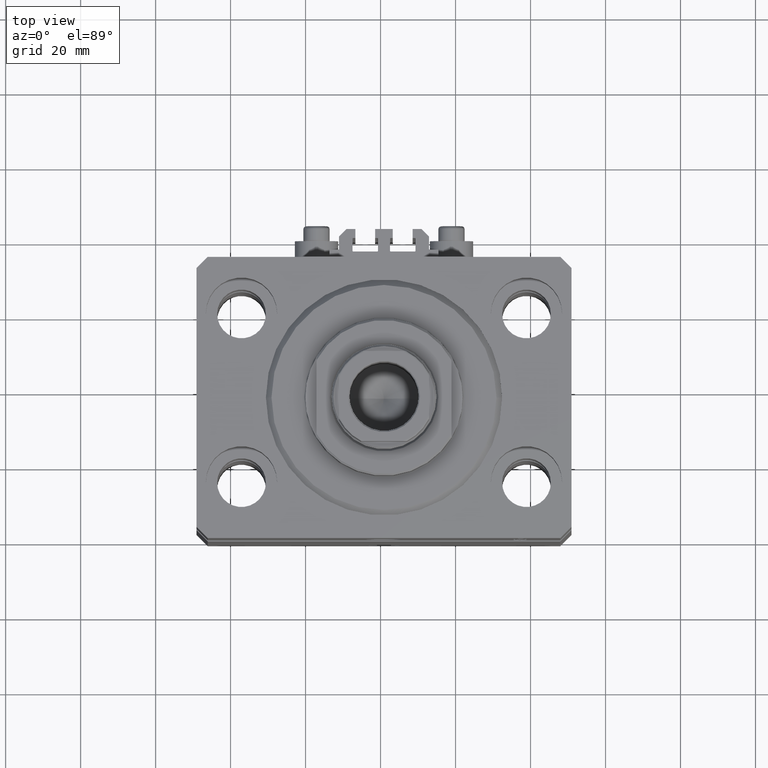
[diagram: clean part render]
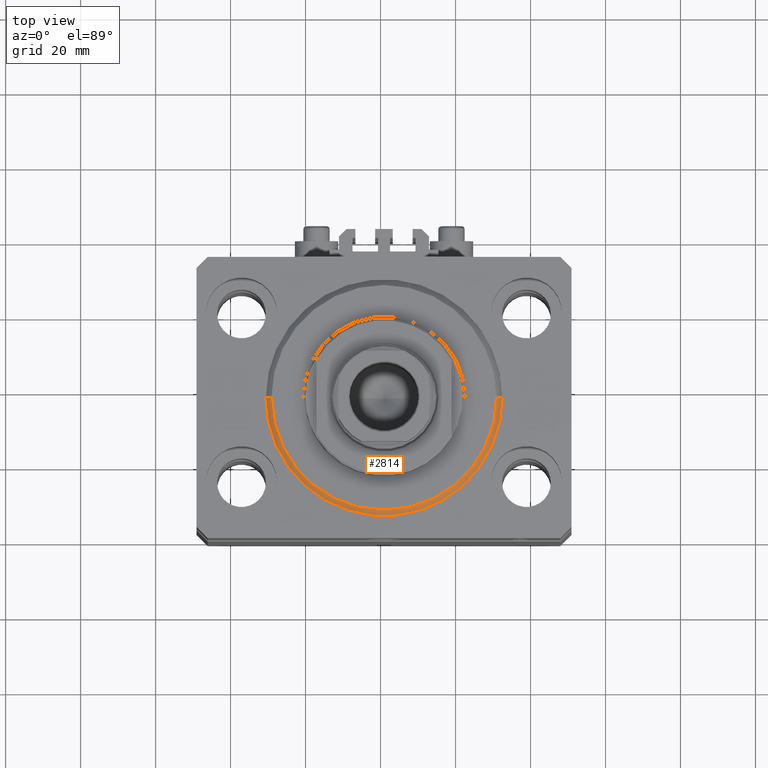
[diagram: same view with one face highlighted and labeled with its STEP entity id]
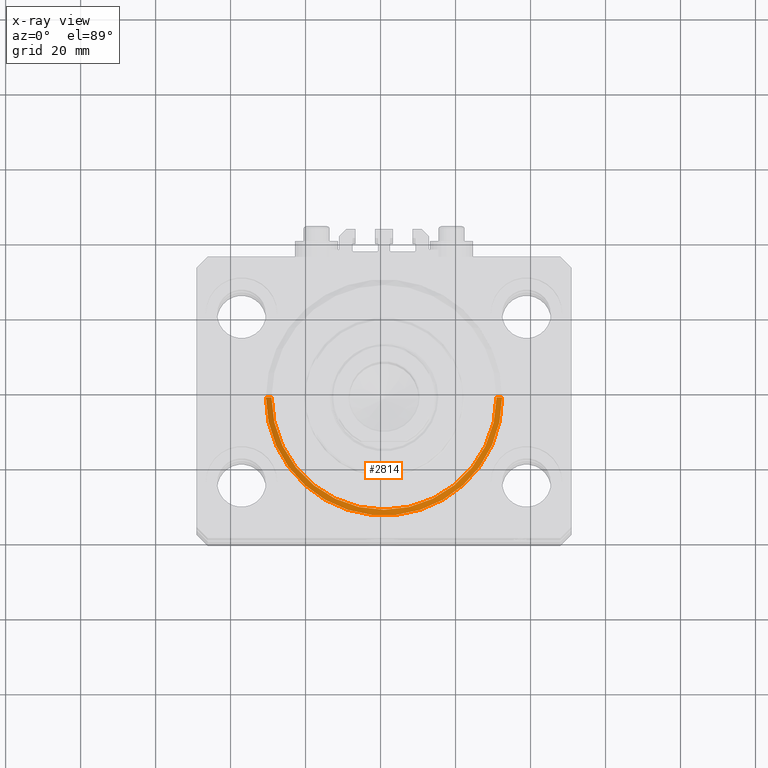
[diagram: x-ray of the same camera — body ghosted, the highlighted face saturated]
A machine part, top view. The second image highlights one B-rep face of the part: STEP entity #2814.
The next image is the same camera in x-ray: the body ghosted, the highlighted face saturated — about 0% of this face is hidden behind the body in this view.
In plain terms, the highlighted conical surface has half-angle 45 deg.
Its self-contained STEP definition (entity closure, byte-faithful):
#1335 = VECTOR ( 'NONE', #45282, 1000.000000000000114 ) ;
#2551 = DIRECTION ( 'NONE',  ( -0.000000000000000000, -0.000000000000000000, 1.000000000000000000 ) ) ;
#2814 = ADVANCED_FACE ( 'NONE', ( #23373 ), #9220, .T. ) ;
#3136 = EDGE_CURVE ( 'NONE', #14443, #21429, #15602, .T. ) ;
#3937 = AXIS2_PLACEMENT_3D ( 'NONE', #46903, #39678, #36527 ) ;
#4872 = CARTESIAN_POINT ( 'NONE',  ( -30.00000000000002132, 3.765788907378112117E-15, 0.000000000000000000 ) ) ;
#6915 = VECTOR ( 'NONE', #26685, 1000.000000000000114 ) ;
#8194 = DIRECTION ( 'NONE',  ( 1.000000000000000000, 0.000000000000000000, 0.000000000000000000 ) ) ;
#9220 = CONICAL_SURFACE ( 'NONE', #20023, 31.50000000000000000, 0.7853981633974482790 ) ;
#9424 = EDGE_CURVE ( 'NONE', #22944, #14443, #32410, .T. ) ;
#11995 = CARTESIAN_POINT ( 'NONE',  ( -31.50000000000000000, 3.857637417314162689E-15, 1.499999999999980460 ) ) ;
#14105 = CARTESIAN_POINT ( 'NONE',  ( 0.000000000000000000, 0.000000000000000000, 1.499999999999980460 ) ) ;
#14443 = VERTEX_POINT ( 'NONE', #4872 ) ;
#15602 = LINE ( 'NONE', #11995, #6915 ) ;
#19132 = CARTESIAN_POINT ( 'NONE',  ( 31.50000000000000000, 3.857637417314162689E-15, 1.499999999999980460 ) ) ;
#20023 = AXIS2_PLACEMENT_3D ( 'NONE', #45105, #44857, #8194 ) ;
#21429 = VERTEX_POINT ( 'NONE', #41967 ) ;
#21493 = CARTESIAN_POINT ( 'NONE',  ( 30.00000000000002132, 0.000000000000000000, 0.000000000000000000 ) ) ;
#22112 = EDGE_LOOP ( 'NONE', ( #31326, #47698, #31389, #46504 ) ) ;
#22612 = CIRCLE ( 'NONE', #41108, 31.50000000000000000 ) ;
#22944 = VERTEX_POINT ( 'NONE', #21493 ) ;
#23373 = FACE_OUTER_BOUND ( 'NONE', #22112, .T. ) ;
#24279 = EDGE_CURVE ( 'NONE', #22944, #35634, #41414, .T. ) ;
#26685 = DIRECTION ( 'NONE',  ( -0.7071067811865474617, 8.659560562354932858E-17, 0.7071067811865474617 ) ) ;
#27419 = CARTESIAN_POINT ( 'NONE',  ( 31.50000000000000000, 0.000000000000000000, 1.499999999999980460 ) ) ;
#31326 = ORIENTED_EDGE ( 'NONE', *, *, #3136, .F. ) ;
#31389 = ORIENTED_EDGE ( 'NONE', *, *, #24279, .T. ) ;
#32410 = CIRCLE ( 'NONE', #3937, 30.00000000000002132 ) ;
#35634 = VERTEX_POINT ( 'NONE', #19132 ) ;
#36527 = DIRECTION ( 'NONE',  ( 1.000000000000000000, 0.000000000000000000, 0.000000000000000000 ) ) ;
#39678 = DIRECTION ( 'NONE',  ( -0.000000000000000000, -0.000000000000000000, -1.000000000000000000 ) ) ;
#39906 = DIRECTION ( 'NONE',  ( 1.000000000000000000, 0.000000000000000000, 0.000000000000000000 ) ) ;
#41108 = AXIS2_PLACEMENT_3D ( 'NONE', #14105, #2551, #39906 ) ;
#41414 = LINE ( 'NONE', #27419, #1335 ) ;
#41967 = CARTESIAN_POINT ( 'NONE',  ( -31.50000000000000000, 0.000000000000000000, 1.499999999999980460 ) ) ;
#43973 = EDGE_CURVE ( 'NONE', #21429, #35634, #22612, .T. ) ;
#44857 = DIRECTION ( 'NONE',  ( -0.000000000000000000, -0.000000000000000000, 1.000000000000000000 ) ) ;
#45105 = CARTESIAN_POINT ( 'NONE',  ( 0.000000000000000000, 0.000000000000000000, 1.499999999999980460 ) ) ;
#45282 = DIRECTION ( 'NONE',  ( 0.7071067811865474617, 0.000000000000000000, 0.7071067811865474617 ) ) ;
#46504 = ORIENTED_EDGE ( 'NONE', *, *, #43973, .F. ) ;
#46903 = CARTESIAN_POINT ( 'NONE',  ( 0.000000000000000000, 0.000000000000000000, 0.000000000000000000 ) ) ;
#47698 = ORIENTED_EDGE ( 'NONE', *, *, #9424, .F. ) ;